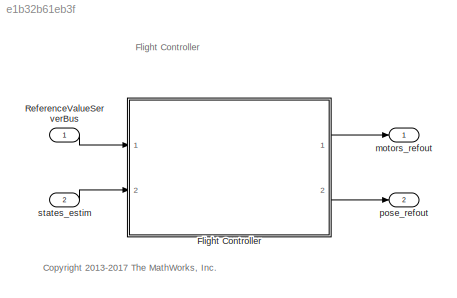
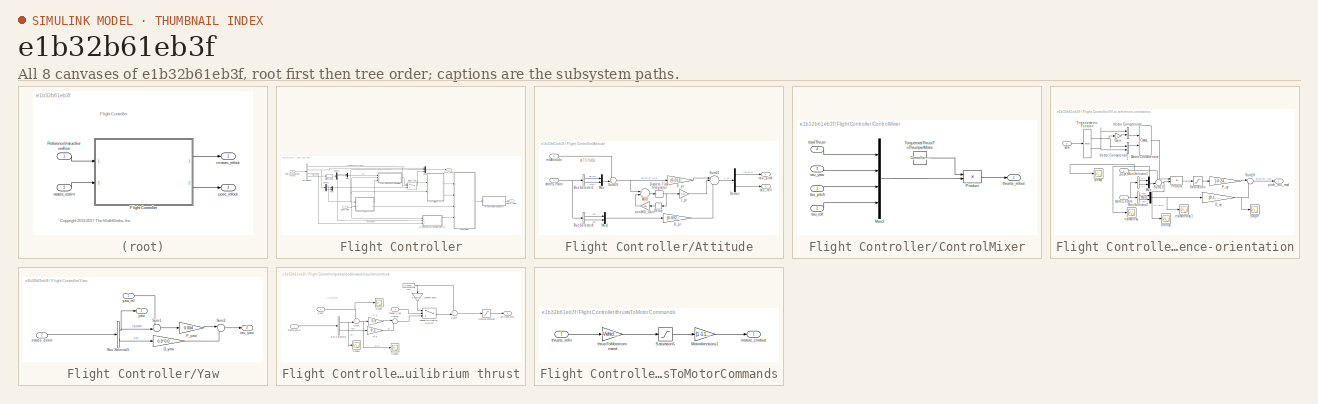
[diagram: thumbnail index - all 8 canvases of the model, root first then tree order]
MODEL slx_e1b32b61eb3f
KIND model
CONFIG AbsTol = auto
CONFIG EnableMultiTasking = on
CONFIG FixedStep = Ts
CONFIG MaxStep = auto
CONFIG MinStep = auto
CONFIG RelTol = 1e-3
CONFIG SampleTimeConstraint = Unconstrained
CONFIG Solver = ode3
CONFIG SolverName = ode3
CONFIG StartTime = 0
CONFIG StopTime = 10.0
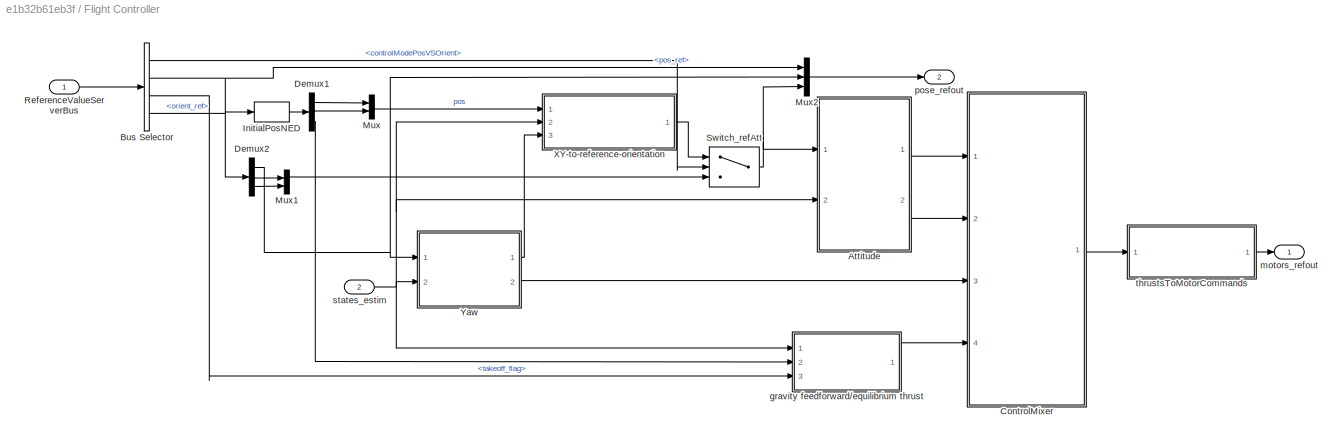
BLOCK [SubSystem] Flight Controller
  Ports = [2, 2]
  RequestExecContextInheritance = off
  Variant = off
BLOCK [SubSystem] Flight Controller/Attitude
  Ports = [2, 2]
  RequestExecContextInheritance = off
  Variant = off
BLOCK [Sum] Flight Controller/Attitude/Add
  InputSameDT = off
  Inputs = +-
  OutDataTypeStr = Inherit: Inherit via internal rule
  Ports = [2, 1]
  SaturateOnIntegerOverflow = off
BLOCK [BusSelector] Flight Controller/Attitude/Bus Selector3
  OutputAsBus = off
  OutputSignals = pitch,roll
  Ports = [1, 2]
BLOCK [BusSelector] Flight Controller/Attitude/Bus Selector4
  OutputAsBus = off
  OutputSignals = q,p
  Ports = [1, 2]
BLOCK [Gain] Flight Controller/Attitude/D_pr
  Gain = [0.002;0.003]
  OutDataTypeStr = Inherit: Inherit via internal rule
  ParamDataTypeStr = Inherit: Inherit via internal rule
  SaturateOnIntegerOverflow = off
BLOCK [Delay] Flight Controller/Attitude/Delay
  DelayLength = 1
  InitialCondition = 0
  InputPortMap = u0
  Ports = [1, 1]
BLOCK [Demux] Flight Controller/Attitude/Demux
  DisplayOption = bar
  Outputs = 2
  Ports = [1, 2]
BLOCK [DiscreteIntegrator] Flight Controller/Attitude/Discrete-Time Integrator
  ICPrevOutput = DiscIntNeverNeededParam
  ICPrevScaledInput = DiscIntNeverNeededParam
  InitialConditionSetting = State (most efficient)
  LimitOutput = on
  LowerSaturationLimit = -2
  Ports = [1, 1]
  SampleTime = Ts
  UpperSaturationLimit = 2
BLOCK [Gain] Flight Controller/Attitude/I_pr
  Gain = 0.01
  OutDataTypeStr = Inherit: Inherit via internal rule
  ParamDataTypeStr = Inherit: Inherit via internal rule
  SaturateOnIntegerOverflow = off
BLOCK [Mux] Flight Controller/Attitude/Mux
  DisplayOption = bar
  Inputs = 2
  Ports = [2, 1]
BLOCK [Mux] Flight Controller/Attitude/Mux1
  DisplayOption = bar
  Inputs = 2
  Ports = [2, 1]
BLOCK [Gain] Flight Controller/Attitude/P_pr
  Gain = [0.013;0.02]
  OutDataTypeStr = Inherit: Inherit via internal rule
  ParamDataTypeStr = Inherit: Inherit via internal rule
  SaturateOnIntegerOverflow = off
BLOCK [Sum] Flight Controller/Attitude/Sum16
  AccumDataTypeStr = single
  IconShape = round
  InputSameDT = off
  Inputs = ||++-
  OutDataTypeStr = single
  Ports = [3, 1]
BLOCK [Sum] Flight Controller/Attitude/Sum19
  IconShape = round
  InputSameDT = off
  Inputs = +-|
  OutDataTypeStr = Inherit: Inherit via internal rule
  Ports = [2, 1]
  SaturateOnIntegerOverflow = off
BLOCK [Gain] Flight Controller/Attitude/antiWU_Gain
  Gain = 0.001
  OutDataTypeStr = Inherit: Inherit via internal rule
  ParamDataTypeStr = Inherit: Inherit via internal rule
  SaturateOnIntegerOverflow = off
BLOCK [Inport] Flight Controller/Attitude/refAttitude
  IconDisplay = Port number
BLOCK [Inport] Flight Controller/Attitude/states_estim
  IconDisplay = Port number
  Port = 2
BLOCK [Outport] Flight Controller/Attitude/tau_pitch
  IconDisplay = Port number
BLOCK [Outport] Flight Controller/Attitude/tau_roll
  IconDisplay = Port number
  Port = 2
BLOCK [BusSelector] Flight Controller/Bus Selector
  OutputAsBus = off
  OutputSignals = controlModePosVSOrient,pos_ref,takeoff_flag,orient_ref
  Ports = [1, 4]
BLOCK [SubSystem] Flight Controller/ControlMixer
  Ports = [4, 1]
  RequestExecContextInheritance = off
  Variant = off
BLOCK [Mux] Flight Controller/ControlMixer/Mux2
  DisplayOption = bar
  Ports = [4, 1]
BLOCK [Product] Flight Controller/ControlMixer/Product
  InputSameDT = off
  Multiplication = Matrix(*)
  OutDataTypeStr = Inherit: Inherit via internal rule
  Ports = [2, 1]
  SaturateOnIntegerOverflow = off
BLOCK [Constant] Flight Controller/ControlMixer/TorquetotalThrustToThrustperMotor
  OutDataTypeStr = single
  Value = Controller.Q2Ts
BLOCK [Inport] Flight Controller/ControlMixer/tau_pitch
  IconDisplay = Port number
BLOCK [Inport] Flight Controller/ControlMixer/tau_roll
  IconDisplay = Port number
  Port = 2
BLOCK [Inport] Flight Controller/ControlMixer/tau_yaw
  IconDisplay = Port number
  Port = 3
BLOCK [Outport] Flight Controller/ControlMixer/thrusts_refout
  IconDisplay = Port number
BLOCK [Inport] Flight Controller/ControlMixer/totalThrust
  IconDisplay = Port number
  Port = 4
BLOCK [Demux] Flight Controller/Demux1
  DisplayOption = bar
  Outputs = 3
  Ports = [1, 3]
BLOCK [Demux] Flight Controller/Demux2
  DisplayOption = bar
  Outputs = 3
  Ports = [1, 3]
BLOCK [Bias] Flight Controller/InitialPosNED
  Bias = -init.posNED
  SaturateOnIntegerOverflow = off
BLOCK [Mux] Flight Controller/Mux
  DisplayOption = bar
  Inputs = 2
  Ports = [2, 1]
BLOCK [Mux] Flight Controller/Mux1
  DisplayOption = bar
  Inputs = 2
  Ports = [2, 1]
BLOCK [Mux] Flight Controller/Mux2
  DisplayOption = bar
  Inputs = 3
  Ports = [3, 1]
BLOCK [Inport] Flight Controller/ReferenceValueServerBus
  IconDisplay = Port number
BLOCK [Switch] Flight Controller/Switch_refAtt
  Criteria = u2 > Threshold
  InputSameDT = off
  SaturateOnIntegerOverflow = off
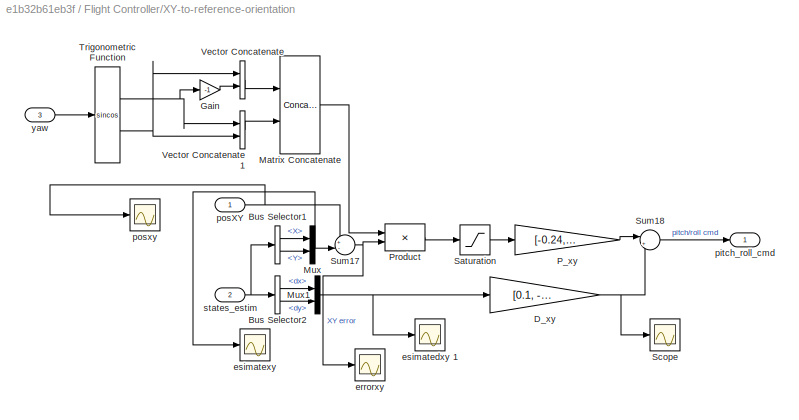
BLOCK [SubSystem] Flight Controller/XY-to-reference-orientation
  Ports = [3, 1]
  RequestExecContextInheritance = off
  Variant = off
BLOCK [BusSelector] Flight Controller/XY-to-reference-orientation/Bus Selector1
  OutputAsBus = off
  OutputSignals = X,Y
  Ports = [1, 2]
BLOCK [BusSelector] Flight Controller/XY-to-reference-orientation/Bus Selector2
  OutputAsBus = off
  OutputSignals = dx,dy
  Ports = [1, 2]
BLOCK [Gain] Flight Controller/XY-to-reference-orientation/D_xy
  Gain = [0.1, -0.1]
  OutDataTypeStr = single
  ParamDataTypeStr = single
BLOCK [Gain] Flight Controller/XY-to-reference-orientation/Gain
  Gain = -1
  OutDataTypeStr = Inherit: Inherit via internal rule
  ParamDataTypeStr = Inherit: Inherit via internal rule
  SaturateOnIntegerOverflow = off
BLOCK [Concatenate] Flight Controller/XY-to-reference-orientation/Matrix Concatenate
  ConcatenateDimension = 2
  Mode = Multidimensional array
  Ports = [2, 1]
BLOCK [Mux] Flight Controller/XY-to-reference-orientation/Mux
  DisplayOption = bar
  Inputs = 2
  Ports = [2, 1]
BLOCK [Mux] Flight Controller/XY-to-reference-orientation/Mux1
  DisplayOption = bar
  Inputs = 2
  Ports = [2, 1]
BLOCK [Gain] Flight Controller/XY-to-reference-orientation/P_xy
  Gain = [-0.24,0.24]
  OutDataTypeStr = single
  ParamDataTypeStr = single
BLOCK [Product] Flight Controller/XY-to-reference-orientation/Product
  InputSameDT = off
  Multiplication = Matrix(*)
  OutDataTypeStr = single
  Ports = [2, 1]
  SaturateOnIntegerOverflow = off
BLOCK [Saturate] Flight Controller/XY-to-reference-orientation/Saturation
  InputPortMap = u0
  LowerLimit = -3
  OutDataTypeStr = single
  Ports = [1, 1]
  UpperLimit = 3
BLOCK [Scope] Flight Controller/XY-to-reference-orientation/Scope
  NumInputPorts = 1
  Ports = [1]
  ScopeSpecificationString = Simulink.scopes.TimeScopeBlockCfg('CurrentConfiguration', extmgr.ConfigurationSet(extmgr.Configuration('Core','General UI',true),extmgr.Configuration('Core','Source UI',true),extmgr.Configuration('Sources','WiredSimulink',true,'DataLoggingVariableName','ScopeData3'),extmgr.Configuration('Visuals','Time Domain',true,'SerializedDisplays',{struct('MinYLimReal','-0.88761','MaxYLimReal','0.09862','YLab...<+1374ch>
BLOCK [Sum] Flight Controller/XY-to-reference-orientation/Sum17
  AccumDataTypeStr = single
  IconShape = round
  InputSameDT = off
  Inputs = +-|
  OutDataTypeStr = Inherit: Inherit via internal rule
  Ports = [2, 1]
  SaturateOnIntegerOverflow = off
BLOCK [Sum] Flight Controller/XY-to-reference-orientation/Sum18
  AccumDataTypeStr = single
  IconShape = round
  InputSameDT = off
  Inputs = |++
  OutDataTypeStr = single
  Ports = [2, 1]
BLOCK [Trigonometry] Flight Controller/XY-to-reference-orientation/Trigonometric Function
  Operator = sincos
  Ports = [1, 2]
BLOCK [Concatenate] Flight Controller/XY-to-reference-orientation/Vector Concatenate
  Ports = [2, 1]
BLOCK [Concatenate] Flight Controller/XY-to-reference-orientation/Vector Concatenate1
  Ports = [2, 1]
BLOCK [Scope] Flight Controller/XY-to-reference-orientation/errorxy
  NumInputPorts = 1
  Ports = [1]
  ScopeSpecificationString = Simulink.scopes.TimeScopeBlockCfg('CurrentConfiguration', extmgr.ConfigurationSet(extmgr.Configuration('Core','General UI',true),extmgr.Configuration('Core','Source UI',true),extmgr.Configuration('Sources','WiredSimulink',true),extmgr.Configuration('Visuals','Time Domain',true,'SerializedDisplays',{struct('MinYLimReal','-6.74511','MaxYLimReal','60.70595','YLabelReal','','MinYLimMag','0.00000','Max...<+1734ch>
BLOCK [Scope] Flight Controller/XY-to-reference-orientation/esimatedxy 1
  NumInputPorts = 1
  Ports = [1]
  ScopeSpecificationString = Simulink.scopes.TimeScopeBlockCfg('CurrentConfiguration', extmgr.ConfigurationSet(extmgr.Configuration('Core','General UI',true),extmgr.Configuration('Core','Source UI',true),extmgr.Configuration('Sources','WiredSimulink',true,'DataLoggingVariableName','ScopeData7'),extmgr.Configuration('Visuals','Time Domain',true,'SerializedDisplays',{struct('MinYLimReal','-8.8761','MaxYLimReal','0.98623','YLabe...<+1711ch>
BLOCK [Scope] Flight Controller/XY-to-reference-orientation/esimatexy 
  NumInputPorts = 1
  Ports = [1]
  ScopeSpecificationString = Simulink.scopes.TimeScopeBlockCfg('CurrentConfiguration', extmgr.ConfigurationSet(extmgr.Configuration('Core','General UI',true),extmgr.Configuration('Core','Source UI',true),extmgr.Configuration('Sources','WiredSimulink',true,'DataLoggingVariableName','ScopeData2'),extmgr.Configuration('Visuals','Time Domain',true,'SerializedDisplays',{struct('MinYLimReal','-38.20595','MaxYLimReal','4.24511','YLa...<+1729ch>
BLOCK [Outport] Flight Controller/XY-to-reference-orientation/pitch_roll_cmd
  IconDisplay = Port number
BLOCK [Inport] Flight Controller/XY-to-reference-orientation/posXY
  IconDisplay = Port number
BLOCK [Scope] Flight Controller/XY-to-reference-orientation/posxy
  NumInputPorts = 1
  Ports = [1]
  ScopeSpecificationString = Simulink.scopes.TimeScopeBlockCfg('CurrentConfiguration', extmgr.ConfigurationSet(extmgr.Configuration('Core','General UI',true),extmgr.Configuration('Core','Source UI',true),extmgr.Configuration('Sources','WiredSimulink',true,'DataLoggingVariableName','ScopeData1'),extmgr.Configuration('Visuals','Time Domain',true,'SerializedDisplays',{struct('MinYLimReal','-2.5','MaxYLimReal','22.5','YLabelReal'...<+1356ch>
BLOCK [Inport] Flight Controller/XY-to-reference-orientation/states_estim
  IconDisplay = Port number
  Port = 2
BLOCK [Inport] Flight Controller/XY-to-reference-orientation/yaw
  IconDisplay = Port number
  Port = 3
BLOCK [SubSystem] Flight Controller/Yaw
  Ports = [2, 2]
  RequestExecContextInheritance = off
  Variant = off
BLOCK [BusSelector] Flight Controller/Yaw/Bus Selector5
  OutputAsBus = off
  OutputSignals = yaw,r
  Ports = [1, 2]
BLOCK [Gain] Flight Controller/Yaw/D_yaw
  Gain = 0.3*0.004
  OutDataTypeStr = Inherit: Inherit via internal rule
  ParamDataTypeStr = Inherit: Inherit via internal rule
  SaturateOnIntegerOverflow = off
BLOCK [Gain] Flight Controller/Yaw/P_yaw
  Gain = 0.004
  OutDataTypeStr = single
  ParamDataTypeStr = single
  SaturateOnIntegerOverflow = off
BLOCK [Sum] Flight Controller/Yaw/Sum1
  AccumDataTypeStr = single
  IconShape = round
  InputSameDT = off
  Inputs = +-|
  OutDataTypeStr = single
  Ports = [2, 1]
BLOCK [Sum] Flight Controller/Yaw/Sum2
  IconShape = round
  InputSameDT = off
  Inputs = |+-
  OutDataTypeStr = Inherit: Inherit via internal rule
  Ports = [2, 1]
  SaturateOnIntegerOverflow = off
BLOCK [Inport] Flight Controller/Yaw/states_estim
  IconDisplay = Port number
  Port = 2
BLOCK [Outport] Flight Controller/Yaw/tau_yaw
  IconDisplay = Port number
  Port = 2
BLOCK [Outport] Flight Controller/Yaw/yaw
  IconDisplay = Port number
BLOCK [Inport] Flight Controller/Yaw/yaw_ref
  IconDisplay = Port number
BLOCK [SubSystem] Flight Controller/gravity feedforward//equilibrium thrust
  Ports = [3, 1]
  RequestExecContextInheritance = off
  Variant = off
BLOCK [BusSelector] Flight Controller/gravity feedforward//equilibrium thrust/Bus Selector6
  OutputAsBus = off
  OutputSignals = Z,dz
  Ports = [1, 2]
BLOCK [Gain] Flight Controller/gravity feedforward//equilibrium thrust/D_z
  Gain = 0.3
  OutDataTypeStr = single
  ParamDataTypeStr = single
BLOCK [Gain] Flight Controller/gravity feedforward//equilibrium thrust/P_z
  Gain = 0.8
  OutDataTypeStr = single
  ParamDataTypeStr = single
BLOCK [Inport] Flight Controller/gravity feedforward//equilibrium thrust/PosZ
  IconDisplay = Port number
  Port = 2
BLOCK [Saturate] Flight Controller/gravity feedforward//equilibrium thrust/SaturationThrust
  InputPortMap = u0
  LowerLimit = -4*Controller.totalThrustMaxRelative*Controller.motorsThrustPerMotorMax
  OutDataTypeStr = single
  Ports = [1, 1]
  UpperLimit = 4*Controller.totalThrustMaxRelative*Controller.motorsThrustPerMotorMax
BLOCK [Scope] Flight Controller/gravity feedforward//equilibrium thrust/Scope
  NumInputPorts = 1
  Ports = [1]
  ScopeSpecificationString = Simulink.scopes.TimeScopeBlockCfg('CurrentConfiguration', extmgr.ConfigurationSet(extmgr.Configuration('Core','General UI',true),extmgr.Configuration('Core','Source UI',true),extmgr.Configuration('Sources','WiredSimulink',true,'DataLoggingVariableName','ScopeData4'),extmgr.Configuration('Visuals','Time Domain',true,'SerializedDisplays',{struct('MinYLimReal','-2.25','MaxYLimReal','0.25','YLabelReal...<+1345ch>
BLOCK [Scope] Flight Controller/gravity feedforward//equilibrium thrust/Scope1
  NumInputPorts = 1
  Ports = [1]
  ScopeSpecificationString = Simulink.scopes.TimeScopeBlockCfg('CurrentConfiguration', extmgr.ConfigurationSet(extmgr.Configuration('Core','General UI',true),extmgr.Configuration('Core','Source UI',true),extmgr.Configuration('Sources','WiredSimulink',true,'DataLoggingVariableName','ScopeData5'),extmgr.Configuration('Visuals','Time Domain',true,'SerializedDisplays',{struct('MinYLimReal','-2.37116','MaxYLimReal','0.26462','YLab...<+1414ch>
BLOCK [Scope] Flight Controller/gravity feedforward//equilibrium thrust/Scope2
  NumInputPorts = 1
  Ports = [1]
  ScopeSpecificationString = Simulink.scopes.TimeScopeBlockCfg('CurrentConfiguration', extmgr.ConfigurationSet(extmgr.Configuration('Core','General UI',true),extmgr.Configuration('Core','Source UI',true),extmgr.Configuration('Sources','WiredSimulink',true,'DataLoggingVariableName','ScopeData6'),extmgr.Configuration('Visuals','Time Domain',true,'SerializedDisplays',{struct('MinYLimReal','-2.28501','MaxYLimReal','0.55465','YLab...<+1363ch>
BLOCK [Sum] Flight Controller/gravity feedforward//equilibrium thrust/Sum15
  AccumDataTypeStr = single
  IconShape = round
  InputSameDT = off
  Inputs = |+-
  OutDataTypeStr = single
  Ports = [2, 1]
BLOCK [Sum] Flight Controller/gravity feedforward//equilibrium thrust/Sum3
  AccumDataTypeStr = single
  IconShape = round
  InputSameDT = off
  Inputs = +-|
  OutDataTypeStr = single
  Ports = [2, 1]
BLOCK [Sum] Flight Controller/gravity feedforward//equilibrium thrust/Sum4
  AccumDataTypeStr = single
  IconShape = round
  InputSameDT = off
  Inputs = ++|
  OutDataTypeStr = single
  Ports = [2, 1]
BLOCK [Switch] Flight Controller/gravity feedforward//equilibrium thrust/TakeoffOrControl_Switch
  Criteria = u2 > Threshold
  InputSameDT = off
  SaturateOnIntegerOverflow = off
BLOCK [Outport] Flight Controller/gravity feedforward//equilibrium thrust/altitude_cmd
  IconDisplay = Port number
BLOCK [Inport] Flight Controller/gravity feedforward//equilibrium thrust/states_estim
  IconDisplay = Port number
BLOCK [Inport] Flight Controller/gravity feedforward//equilibrium thrust/takeoff_flag
  IconDisplay = Port number
  Port = 3
BLOCK [Gain] Flight Controller/gravity feedforward//equilibrium thrust/takeoff_gain
  Gain = Controller.takeoffGain
  OutDataTypeStr = single
  ParamDataTypeStr = single
BLOCK [Constant] Flight Controller/gravity feedforward//equilibrium thrust/w0
  OutDataTypeStr = single
  SampleTime = Ts
  Value = -g*Vehicle.Airframe.mass
BLOCK [Outport] Flight Controller/motors_refout
  IconDisplay = Port number
BLOCK [Outport] Flight Controller/pose_refout
  IconDisplay = Port number
  Port = 2
BLOCK [Inport] Flight Controller/states_estim
  IconDisplay = Port number
  Port = 2
BLOCK [SubSystem] Flight Controller/thrustsToMotorCommands
  Ports = [1, 1]
  RequestExecContextInheritance = off
  Variant = off
BLOCK [Gain] Flight Controller/thrustsToMotorCommands/Motordirections1
  Gain = [1 -1 1 -1]
  OutDataTypeStr = Inherit: Inherit via internal rule
  ParamDataTypeStr = double
  SaturateOnIntegerOverflow = off
BLOCK [Saturate] Flight Controller/thrustsToMotorCommands/Saturation5
  InputPortMap = u0
  LowerLimit = Vehicle.Motor.minLimit
  Ports = [1, 1]
  UpperLimit = Vehicle.Motor.maxLimit
BLOCK [Outport] Flight Controller/thrustsToMotorCommands/motors_cmdout
  IconDisplay = Port number
BLOCK [Gain] Flight Controller/thrustsToMotorCommands/thrustToMotorcommand
  Gain = -Vehicle.Motor.thrustToMotorCommand
  OutDataTypeStr = Inherit: Inherit via internal rule
  ParamDataTypeStr = Inherit: Inherit via internal rule
  SaturateOnIntegerOverflow = off
BLOCK [Inport] Flight Controller/thrustsToMotorCommands/thrusts_refin
  IconDisplay = Port number
BLOCK [Inport] ReferenceValueServerBus
  BusOutputAsStruct = on
  IconDisplay = Port number
  OutDataTypeStr = Bus: CommandBus
BLOCK [Outport] motors_refout
  IconDisplay = Port number
  OutDataTypeStr = double
BLOCK [Outport] pose_refout
  IconDisplay = Port number
  Port = 2
BLOCK [Inport] states_estim
  BusOutputAsStruct = on
  IconDisplay = Port number
  OutDataTypeStr = Bus: statesEstim_t
  Port = 2
ANNOTATION (root): <copyright redacted>
ANNOTATION (root): Flight Controller
ANNOTATION Flight Controller/Attitude: ATTITUDE
ANNOTATION Flight Controller/gravity feedforward//equilibrium thrust: ALTITUDE
LINE Flight Controller/Attitude/Add:1 -> Flight Controller/Attitude/Discrete-Time Integrator:1
LINE Flight Controller/Attitude/Bus Selector3:1 -> Flight Controller/Attitude/Mux:1
LINE Flight Controller/Attitude/Bus Selector3:2 -> Flight Controller/Attitude/Mux:2
LINE Flight Controller/Attitude/Bus Selector4:1 -> Flight Controller/Attitude/Mux1:1
LINE Flight Controller/Attitude/Bus Selector4:2 -> Flight Controller/Attitude/Mux1:2
LINE Flight Controller/Attitude/D_pr:1 -> Flight Controller/Attitude/Sum16:3
LINE Flight Controller/Attitude/Delay:1 -> Flight Controller/Attitude/antiWU_Gain:1
LINE Flight Controller/Attitude/Demux:1 -> Flight Controller/Attitude/tau_pitch:1
LINE Flight Controller/Attitude/Demux:2 -> Flight Controller/Attitude/tau_roll:1
NET Flight Controller/Attitude/Discrete-Time Integrator:1 -> Flight Controller/Attitude/Delay:1, Flight Controller/Attitude/I_pr:1
LINE Flight Controller/Attitude/I_pr:1 -> Flight Controller/Attitude/Sum16:2
LINE Flight Controller/Attitude/Mux1:1 -> Flight Controller/Attitude/D_pr:1
LINE Flight Controller/Attitude/Mux:1 -> Flight Controller/Attitude/Sum19:2
LINE Flight Controller/Attitude/P_pr:1 -> Flight Controller/Attitude/Sum16:1
LINE Flight Controller/Attitude/Sum16:1 -> Flight Controller/Attitude/Demux:1
NET Flight Controller/Attitude/Sum19:1 -> Flight Controller/Attitude/Add:1, Flight Controller/Attitude/P_pr:1
LINE Flight Controller/Attitude/antiWU_Gain:1 -> Flight Controller/Attitude/Add:2
LINE Flight Controller/Attitude/refAttitude:1 -> Flight Controller/Attitude/Sum19:1
NET Flight Controller/Attitude/states_estim:1 -> Flight Controller/Attitude/Bus Selector3:1, Flight Controller/Attitude/Bus Selector4:1
LINE Flight Controller/Attitude:1 -> Flight Controller/ControlMixer:1
LINE Flight Controller/Attitude:2 -> Flight Controller/ControlMixer:2
LINE Flight Controller/Bus Selector:1 -> Flight Controller/Switch_refAtt:2
NET Flight Controller/Bus Selector:2 -> Flight Controller/InitialPosNED:1, Flight Controller/Mux2:1
LINE Flight Controller/Bus Selector:3 -> Flight Controller/gravity feedforward//equilibrium thrust:3
LINE Flight Controller/Bus Selector:4 -> Flight Controller/Demux2:1
LINE Flight Controller/ControlMixer/Mux2:1 -> Flight Controller/ControlMixer/Product:2
LINE Flight Controller/ControlMixer/Product:1 -> Flight Controller/ControlMixer/thrusts_refout:1
LINE Flight Controller/ControlMixer/TorquetotalThrustToThrustperMotor:1 -> Flight Controller/ControlMixer/Product:1
LINE Flight Controller/ControlMixer/tau_pitch:1 -> Flight Controller/ControlMixer/Mux2:3
LINE Flight Controller/ControlMixer/tau_roll:1 -> Flight Controller/ControlMixer/Mux2:4
LINE Flight Controller/ControlMixer/tau_yaw:1 -> Flight Controller/ControlMixer/Mux2:2
LINE Flight Controller/ControlMixer/totalThrust:1 -> Flight Controller/ControlMixer/Mux2:1
LINE Flight Controller/ControlMixer:1 -> Flight Controller/thrustsToMotorCommands:1
LINE Flight Controller/Demux1:1 -> Flight Controller/Mux:1
LINE Flight Controller/Demux1:2 -> Flight Controller/Mux:2
LINE Flight Controller/Demux1:3 -> Flight Controller/gravity feedforward//equilibrium thrust:2
NET Flight Controller/Demux2:1 -> Flight Controller/Mux2:2, Flight Controller/Yaw:1
LINE Flight Controller/Demux2:2 -> Flight Controller/Mux1:1
LINE Flight Controller/Demux2:3 -> Flight Controller/Mux1:2
LINE Flight Controller/InitialPosNED:1 -> Flight Controller/Demux1:1
LINE Flight Controller/Mux1:1 -> Flight Controller/Switch_refAtt:3
LINE Flight Controller/Mux2:1 -> Flight Controller/pose_refout:1
LINE Flight Controller/Mux:1 -> Flight Controller/XY-to-reference-orientation:1
LINE Flight Controller/ReferenceValueServerBus:1 -> Flight Controller/Bus Selector:1
NET Flight Controller/Switch_refAtt:1 -> Flight Controller/Attitude:1, Flight Controller/Mux2:3
LINE Flight Controller/XY-to-reference-orientation/Bus Selector1:1 -> Flight Controller/XY-to-reference-orientation/Mux:1
LINE Flight Controller/XY-to-reference-orientation/Bus Selector1:2 -> Flight Controller/XY-to-reference-orientation/Mux:2
LINE Flight Controller/XY-to-reference-orientation/Bus Selector2:1 -> Flight Controller/XY-to-reference-orientation/Mux1:1
LINE Flight Controller/XY-to-reference-orientation/Bus Selector2:2 -> Flight Controller/XY-to-reference-orientation/Mux1:2
NET Flight Controller/XY-to-reference-orientation/D_xy:1 -> Flight Controller/XY-to-reference-orientation/Scope:1, Flight Controller/XY-to-reference-orientation/Sum18:2
LINE Flight Controller/XY-to-reference-orientation/Gain:1 -> Flight Controller/XY-to-reference-orientation/Vector Concatenate:2
LINE Flight Controller/XY-to-reference-orientation/Matrix Concatenate:1 -> Flight Controller/XY-to-reference-orientation/Product:1
NET Flight Controller/XY-to-reference-orientation/Mux1:1 -> Flight Controller/XY-to-reference-orientation/D_xy:1, Flight Controller/XY-to-reference-orientation/esimatedxy 1:1
NET Flight Controller/XY-to-reference-orientation/Mux:1 -> Flight Controller/XY-to-reference-orientation/Sum17:2, Flight Controller/XY-to-reference-orientation/esimatexy :1
LINE Flight Controller/XY-to-reference-orientation/P_xy:1 -> Flight Controller/XY-to-reference-orientation/Sum18:1
LINE Flight Controller/XY-to-reference-orientation/Product:1 -> Flight Controller/XY-to-reference-orientation/Saturation:1
LINE Flight Controller/XY-to-reference-orientation/Saturation:1 -> Flight Controller/XY-to-reference-orientation/P_xy:1
NET Flight Controller/XY-to-reference-orientation/Sum17:1 -> Flight Controller/XY-to-reference-orientation/Product:2, Flight Controller/XY-to-reference-orientation/errorxy:1
LINE Flight Controller/XY-to-reference-orientation/Sum18:1 -> Flight Controller/XY-to-reference-orientation/pitch_roll_cmd:1
NET Flight Controller/XY-to-reference-orientation/Trigonometric Function:1 -> Flight Controller/XY-to-reference-orientation/Gain:1, Flight Controller/XY-to-reference-orientation/Vector Concatenate1:1
NET Flight Controller/XY-to-reference-orientation/Trigonometric Function:2 -> Flight Controller/XY-to-reference-orientation/Vector Concatenate1:2, Flight Controller/XY-to-reference-orientation/Vector Concatenate:1
LINE Flight Controller/XY-to-reference-orientation/Vector Concatenate1:1 -> Flight Controller/XY-to-reference-orientation/Matrix Concatenate:2
LINE Flight Controller/XY-to-reference-orientation/Vector Concatenate:1 -> Flight Controller/XY-to-reference-orientation/Matrix Concatenate:1
NET Flight Controller/XY-to-reference-orientation/posXY:1 -> Flight Controller/XY-to-reference-orientation/Sum17:1, Flight Controller/XY-to-reference-orientation/posxy:1
NET Flight Controller/XY-to-reference-orientation/states_estim:1 -> Flight Controller/XY-to-reference-orientation/Bus Selector1:1, Flight Controller/XY-to-reference-orientation/Bus Selector2:1
LINE Flight Controller/XY-to-reference-orientation/yaw:1 -> Flight Controller/XY-to-reference-orientation/Trigonometric Function:1
LINE Flight Controller/XY-to-reference-orientation:1 -> Flight Controller/Switch_refAtt:1
NET Flight Controller/Yaw/Bus Selector5:1 -> Flight Controller/Yaw/Sum1:2, Flight Controller/Yaw/yaw:1
LINE Flight Controller/Yaw/Bus Selector5:2 -> Flight Controller/Yaw/D_yaw:1
LINE Flight Controller/Yaw/D_yaw:1 -> Flight Controller/Yaw/Sum2:2
LINE Flight Controller/Yaw/P_yaw:1 -> Flight Controller/Yaw/Sum2:1
LINE Flight Controller/Yaw/Sum1:1 -> Flight Controller/Yaw/P_yaw:1
LINE Flight Controller/Yaw/Sum2:1 -> Flight Controller/Yaw/tau_yaw:1
LINE Flight Controller/Yaw/states_estim:1 -> Flight Controller/Yaw/Bus Selector5:1
LINE Flight Controller/Yaw/yaw_ref:1 -> Flight Controller/Yaw/Sum1:1
LINE Flight Controller/Yaw:1 -> Flight Controller/XY-to-reference-orientation:3
LINE Flight Controller/Yaw:2 -> Flight Controller/ControlMixer:3
NET Flight Controller/gravity feedforward//equilibrium thrust/Bus Selector6:1 -> Flight Controller/gravity feedforward//equilibrium thrust/Scope1:1, Flight Controller/gravity feedforward//equilibrium thrust/Sum3:2
LINE Flight Controller/gravity feedforward//equilibrium thrust/Bus Selector6:2 -> Flight Controller/gravity feedforward//equilibrium thrust/D_z:1
LINE Flight Controller/gravity feedforward//equilibrium thrust/D_z:1 -> Flight Controller/gravity feedforward//equilibrium thrust/Sum15:2
LINE Flight Controller/gravity feedforward//equilibrium thrust/P_z:1 -> Flight Controller/gravity feedforward//equilibrium thrust/Sum15:1
NET Flight Controller/gravity feedforward//equilibrium thrust/PosZ:1 -> Flight Controller/gravity feedforward//equilibrium thrust/Scope:1, Flight Controller/gravity feedforward//equilibrium thrust/Sum3:1
LINE Flight Controller/gravity feedforward//equilibrium thrust/SaturationThrust:1 -> Flight Controller/gravity feedforward//equilibrium thrust/altitude_cmd:1
LINE Flight Controller/gravity feedforward//equilibrium thrust/Sum15:1 -> Flight Controller/gravity feedforward//equilibrium thrust/TakeoffOrControl_Switch:3
NET Flight Controller/gravity feedforward//equilibrium thrust/Sum3:1 -> Flight Controller/gravity feedforward//equilibrium thrust/P_z:1, Flight Controller/gravity feedforward//equilibrium thrust/Scope2:1
LINE Flight Controller/gravity feedforward//equilibrium thrust/Sum4:1 -> Flight Controller/gravity feedforward//equilibrium thrust/SaturationThrust:1
LINE Flight Controller/gravity feedforward//equilibrium thrust/TakeoffOrControl_Switch:1 -> Flight Controller/gravity feedforward//equilibrium thrust/Sum4:2
LINE Flight Controller/gravity feedforward//equilibrium thrust/states_estim:1 -> Flight Controller/gravity feedforward//equilibrium thrust/Bus Selector6:1
LINE Flight Controller/gravity feedforward//equilibrium thrust/takeoff_flag:1 -> Flight Controller/gravity feedforward//equilibrium thrust/TakeoffOrControl_Switch:2
LINE Flight Controller/gravity feedforward//equilibrium thrust/takeoff_gain:1 -> Flight Controller/gravity feedforward//equilibrium thrust/TakeoffOrControl_Switch:1
NET Flight Controller/gravity feedforward//equilibrium thrust/w0:1 -> Flight Controller/gravity feedforward//equilibrium thrust/Sum4:1, Flight Controller/gravity feedforward//equilibrium thrust/takeoff_gain:1
LINE Flight Controller/gravity feedforward//equilibrium thrust:1 -> Flight Controller/ControlMixer:4
NET Flight Controller/states_estim:1 -> Flight Controller/Attitude:2, Flight Controller/XY-to-reference-orientation:2, Flight Controller/Yaw:2, Flight Controller/gravity feedforward//equilibrium thrust:1
LINE Flight Controller/thrustsToMotorCommands/Motordirections1:1 -> Flight Controller/thrustsToMotorCommands/motors_cmdout:1
LINE Flight Controller/thrustsToMotorCommands/Saturation5:1 -> Flight Controller/thrustsToMotorCommands/Motordirections1:1
LINE Flight Controller/thrustsToMotorCommands/thrustToMotorcommand:1 -> Flight Controller/thrustsToMotorCommands/Saturation5:1
LINE Flight Controller/thrustsToMotorCommands/thrusts_refin:1 -> Flight Controller/thrustsToMotorCommands/thrustToMotorcommand:1
LINE Flight Controller/thrustsToMotorCommands:1 -> Flight Controller/motors_refout:1
LINE Flight Controller:1 -> motors_refout:1
LINE Flight Controller:2 -> pose_refout:1
LINE ReferenceValueServerBus:1 -> Flight Controller:1
LINE states_estim:1 -> Flight Controller:2
note: NET lines group one-source signal fan-out (src -> all destinations, sorted); 1:1 wires keep LINE
